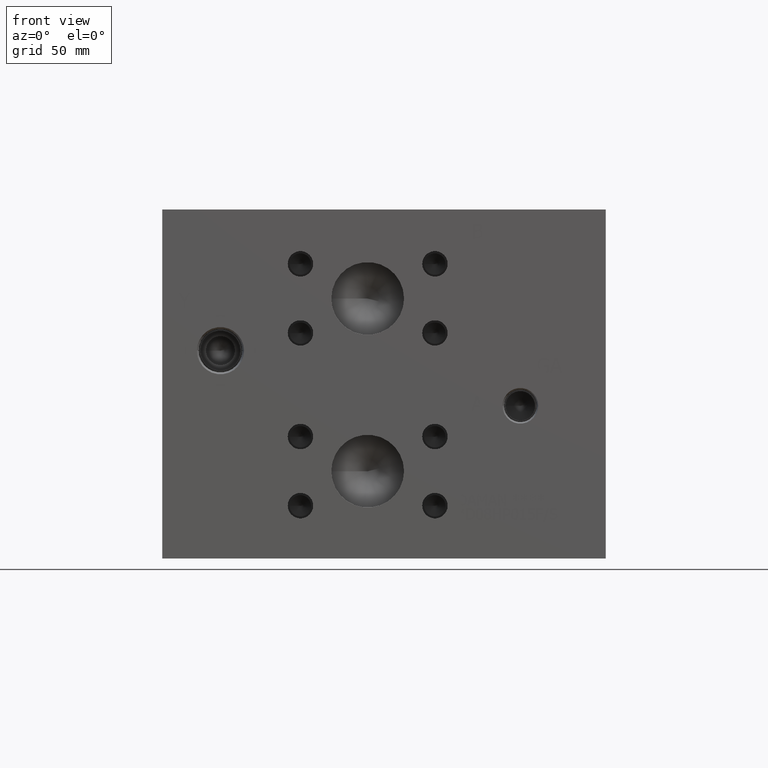
[diagram: clean part render]
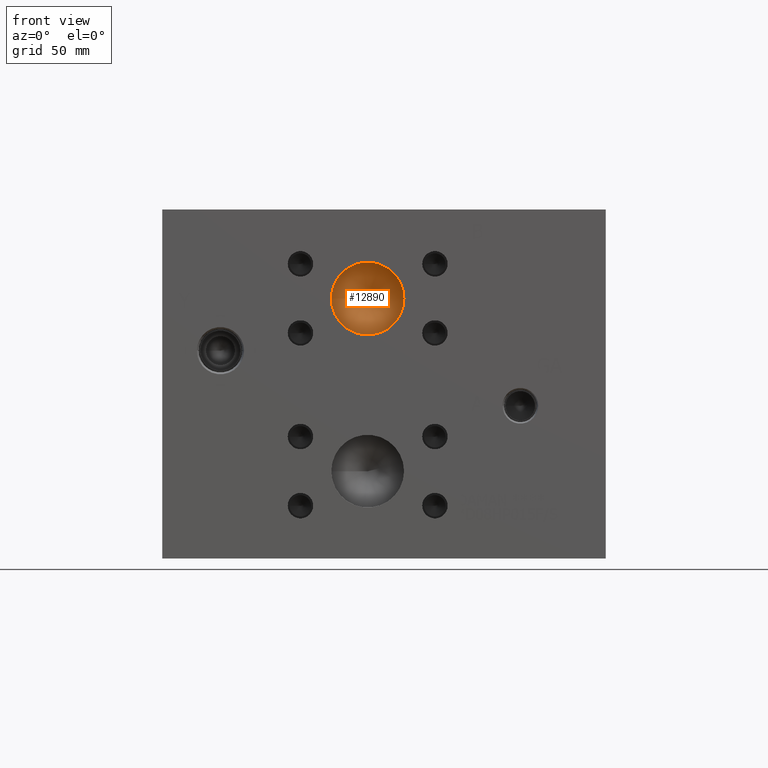
[diagram: same view with one face highlighted and labeled with its STEP entity id]
A machine part, front view. The second image highlights one B-rep face of the part: STEP entity #12890.
In plain terms, the highlighted conical surface has half-angle 60 deg.
Its self-contained STEP definition (entity closure, byte-faithful):
#33=CONICAL_SURFACE('',#13605,7.9375,1.0471975511966);
#339=CIRCLE('',#13606,15.875);
#340=CIRCLE('',#13607,15.875);
#1616=FACE_OUTER_BOUND('',#2384,.T.);
#2384=EDGE_LOOP('',(#10863,#10864,#10865,#10866));
#3614=LINE('',#21771,#4774);
#4774=VECTOR('',#16113,7.9375);
#5919=VERTEX_POINT('',#21767);
#5920=VERTEX_POINT('',#21768);
#5921=VERTEX_POINT('',#21770);
#7646=EDGE_CURVE('',#5919,#5920,#339,.T.);
#7647=EDGE_CURVE('',#5920,#5921,#3614,.T.);
#7648=EDGE_CURVE('',#5920,#5919,#340,.T.);
#10863=ORIENTED_EDGE('',*,*,#7646,.T.);
#10864=ORIENTED_EDGE('',*,*,#7647,.T.);
#10865=ORIENTED_EDGE('',*,*,#7647,.F.);
#10866=ORIENTED_EDGE('',*,*,#7648,.T.);
#12890=ADVANCED_FACE('',(#1616),#33,.F.);
#13605=AXIS2_PLACEMENT_3D('',#21766,#16109,#16110);
#13606=AXIS2_PLACEMENT_3D('',#21769,#16111,#16112);
#13607=AXIS2_PLACEMENT_3D('',#21772,#16114,#16115);
#16109=DIRECTION('center_axis',(0.,-1.,0.));
#16110=DIRECTION('ref_axis',(1.,0.,0.));
#16111=DIRECTION('center_axis',(0.,-1.,0.));
#16112=DIRECTION('ref_axis',(1.,0.,0.));
#16113=DIRECTION('',(0.866025403784439,0.5,1.06057523872491E-16));
#16114=DIRECTION('center_axis',(0.,-1.,0.));
#16115=DIRECTION('ref_axis',(1.,0.,0.));
#21766=CARTESIAN_POINT('Origin',(89.6874,13.7481577616927,113.5126));
#21767=CARTESIAN_POINT('',(105.5624,9.16544,113.5126));
#21768=CARTESIAN_POINT('',(73.8124,9.16544,113.5126));
#21769=CARTESIAN_POINT('Origin',(89.6874,9.16544,113.5126));
#21770=CARTESIAN_POINT('',(89.6874,18.3308755233853,113.5126));
#21771=CARTESIAN_POINT('',(81.7499,13.7481577616927,113.5126));
#21772=CARTESIAN_POINT('Origin',(89.6874,9.16544,113.5126));